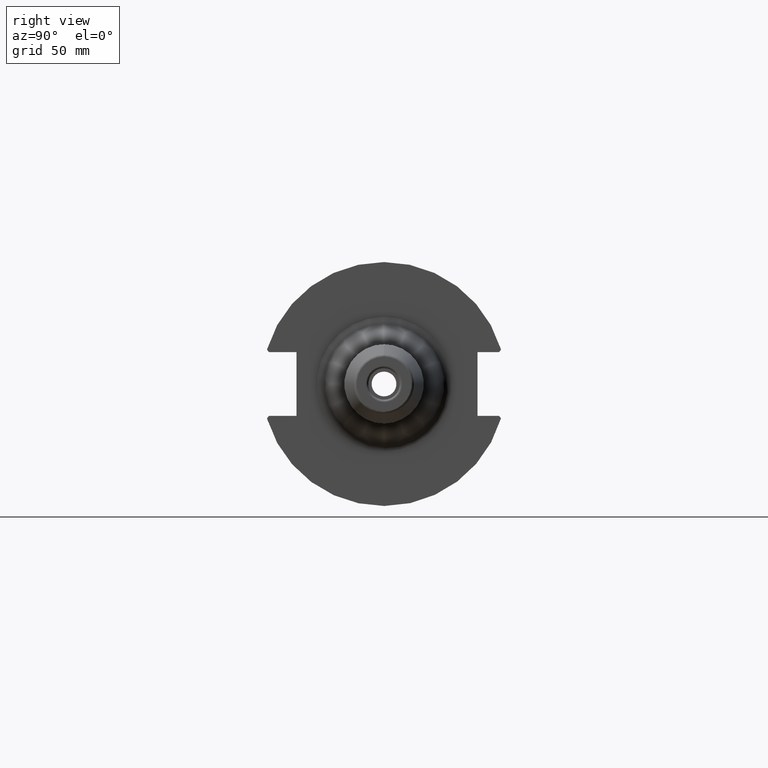
[diagram: clean part render]
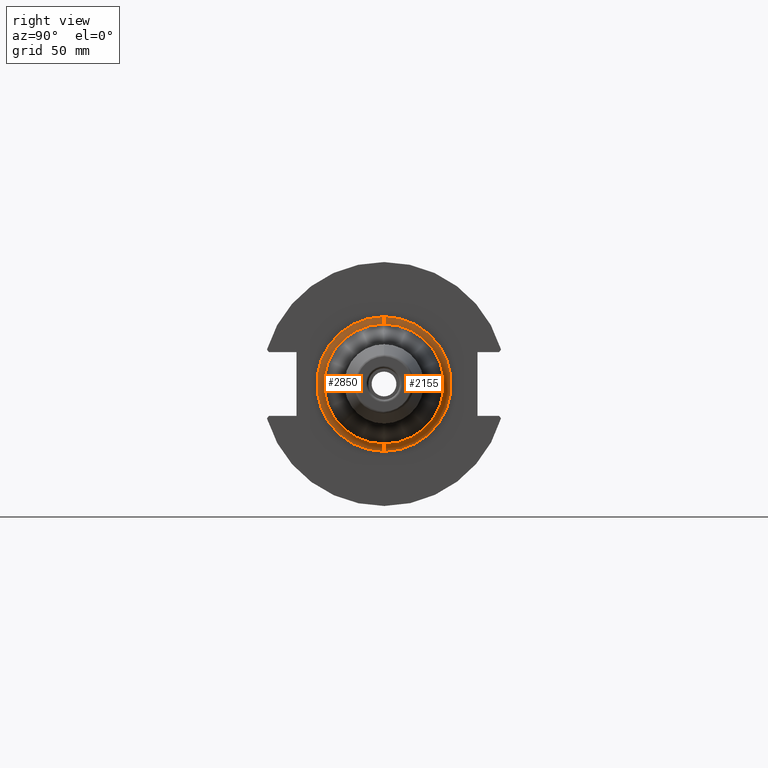
[diagram: same view with one multi-face feature highlighted, each face labeled with its STEP entity id]
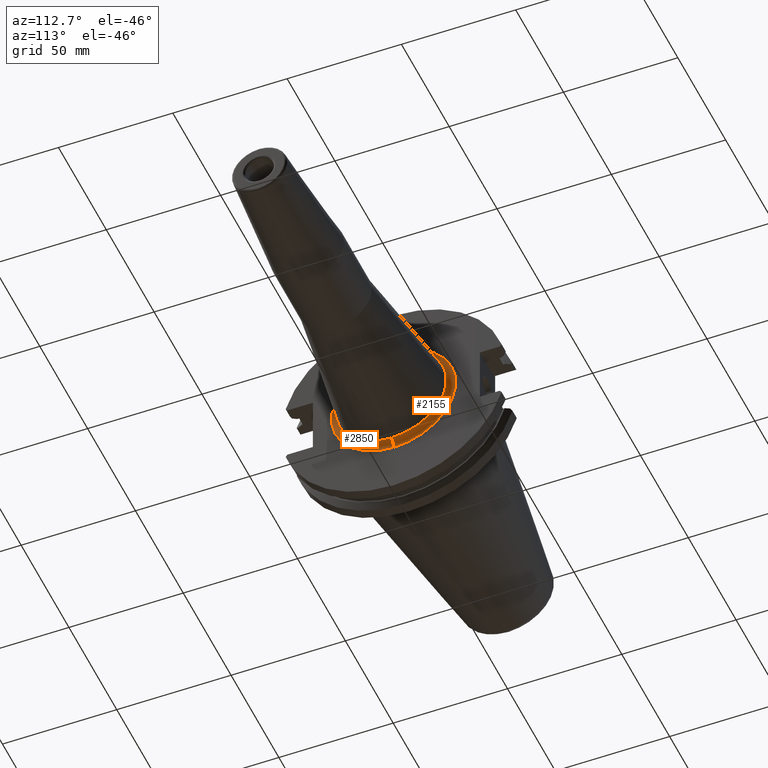
[diagram: same view with one multi-face feature highlighted, each face labeled with its STEP entity id]
A machine part, right view. The highlighted faces form ONE feature: a constant-radius fillet chain: 2 tangent blend faces with common blend radius 3 mm. The faces share edges in the B-rep.
A second angle (auxiliary view) of the same feature is appended — it is thin or edge-on in the first view.
Their STEP definitions:
[1] entity #2850 (Torus):
#562=CARTESIAN_POINT('',(1.905E1,0.E0,0.E0));
#563=DIRECTION('',(1.E0,0.E0,0.E0));
#564=DIRECTION('',(0.E0,0.E0,1.E0));
#565=AXIS2_PLACEMENT_3D('',#562,#563,#564);
#1046=CARTESIAN_POINT('',(2.205E1,0.E0,2.717382408856E1));
#1047=DIRECTION('',(0.E0,1.E0,0.E0));
#1048=DIRECTION('',(-1.391731009601E-1,0.E0,-9.902680687416E-1));
#1049=AXIS2_PLACEMENT_3D('',#1046,#1047,#1048);
#1051=CARTESIAN_POINT('',(2.163248069712E1,0.E0,0.E0));
#1052=DIRECTION('',(-1.E0,0.E0,0.E0));
#1053=DIRECTION('',(0.E0,0.E0,-1.E0));
#1054=AXIS2_PLACEMENT_3D('',#1051,#1052,#1053);
#1056=CARTESIAN_POINT('',(2.205E1,0.E0,-2.717382408856E1));
#1057=DIRECTION('',(0.E0,-1.E0,0.E0));
#1058=DIRECTION('',(-1.391731009601E-1,0.E0,9.902680687416E-1));
#1059=AXIS2_PLACEMENT_3D('',#1056,#1057,#1058);
#1321=CARTESIAN_POINT('',(2.163248069712E1,0.E0,-2.420301988233E1));
#1322=VERTEX_POINT('',#1321);
#1351=CARTESIAN_POINT('',(2.163248069712E1,0.E0,2.420301988233E1));
#1352=VERTEX_POINT('',#1351);
#1357=CARTESIAN_POINT('',(1.905E1,0.E0,-2.717382408856E1));
#1358=CARTESIAN_POINT('',(1.905E1,0.E0,2.717382408856E1));
#1359=VERTEX_POINT('',#1357);
#1360=VERTEX_POINT('',#1358);
#2839=CARTESIAN_POINT('',(2.205E1,0.E0,0.E0));
#2840=DIRECTION('',(1.E0,0.E0,0.E0));
#2841=DIRECTION('',(0.E0,0.E0,1.E0));
#2842=AXIS2_PLACEMENT_3D('',#2839,#2840,#2841);
#2843=TOROIDAL_SURFACE('',#2842,2.717382408856E1,3.E0);
#2844=ORIENTED_EDGE('',*,*,#2188,.F.);
#2845=ORIENTED_EDGE('',*,*,#2151,.F.);
#2846=ORIENTED_EDGE('',*,*,#2120,.F.);
#2847=ORIENTED_EDGE('',*,*,#2148,.T.);
#2848=EDGE_LOOP('',(#2844,#2845,#2846,#2847));
#2849=FACE_OUTER_BOUND('',#2848,.F.);
#2850=ADVANCED_FACE('',(#2849),#2843,.F.);
#566=CIRCLE('',#565,2.717382408856E1);
#1050=CIRCLE('',#1049,3.E0);
#1055=CIRCLE('',#1054,2.420301988233E1);
#1060=CIRCLE('',#1059,3.E0);
#2120=EDGE_CURVE('',#1322,#1352,#1055,.T.);
#2148=EDGE_CURVE('',#1322,#1359,#1060,.T.);
#2151=EDGE_CURVE('',#1352,#1360,#1050,.T.);
#2188=EDGE_CURVE('',#1360,#1359,#566,.T.);
[2] entity #2155 (Torus):
#512=CARTESIAN_POINT('',(2.163248069712E1,0.E0,0.E0));
#513=DIRECTION('',(1.E0,0.E0,0.E0));
#514=DIRECTION('',(0.E0,0.E0,-1.E0));
#515=AXIS2_PLACEMENT_3D('',#512,#513,#514);
#557=CARTESIAN_POINT('',(1.905E1,0.E0,0.E0));
#558=DIRECTION('',(1.E0,0.E0,0.E0));
#559=DIRECTION('',(0.E0,0.E0,-1.E0));
#560=AXIS2_PLACEMENT_3D('',#557,#558,#559);
#1046=CARTESIAN_POINT('',(2.205E1,0.E0,2.717382408856E1));
#1047=DIRECTION('',(0.E0,1.E0,0.E0));
#1048=DIRECTION('',(-1.391731009601E-1,0.E0,-9.902680687416E-1));
#1049=AXIS2_PLACEMENT_3D('',#1046,#1047,#1048);
#1056=CARTESIAN_POINT('',(2.205E1,0.E0,-2.717382408856E1));
#1057=DIRECTION('',(0.E0,-1.E0,0.E0));
#1058=DIRECTION('',(-1.391731009601E-1,0.E0,9.902680687416E-1));
#1059=AXIS2_PLACEMENT_3D('',#1056,#1057,#1058);
#1321=CARTESIAN_POINT('',(2.163248069712E1,0.E0,-2.420301988233E1));
#1322=VERTEX_POINT('',#1321);
#1351=CARTESIAN_POINT('',(2.163248069712E1,0.E0,2.420301988233E1));
#1352=VERTEX_POINT('',#1351);
#1357=CARTESIAN_POINT('',(1.905E1,0.E0,-2.717382408856E1));
#1358=CARTESIAN_POINT('',(1.905E1,0.E0,2.717382408856E1));
#1359=VERTEX_POINT('',#1357);
#1360=VERTEX_POINT('',#1358);
#2141=CARTESIAN_POINT('',(2.205E1,0.E0,0.E0));
#2142=DIRECTION('',(1.E0,0.E0,0.E0));
#2143=DIRECTION('',(0.E0,0.E0,1.E0));
#2144=AXIS2_PLACEMENT_3D('',#2141,#2142,#2143);
#2145=TOROIDAL_SURFACE('',#2144,2.717382408856E1,3.E0);
#2147=ORIENTED_EDGE('',*,*,#2146,.F.);
#2149=ORIENTED_EDGE('',*,*,#2148,.F.);
#2150=ORIENTED_EDGE('',*,*,#2136,.T.);
#2152=ORIENTED_EDGE('',*,*,#2151,.T.);
#2153=EDGE_LOOP('',(#2147,#2149,#2150,#2152));
#2154=FACE_OUTER_BOUND('',#2153,.F.);
#2155=ADVANCED_FACE('',(#2154),#2145,.F.);
#516=CIRCLE('',#515,2.420301988233E1);
#561=CIRCLE('',#560,2.717382408856E1);
#1050=CIRCLE('',#1049,3.E0);
#1060=CIRCLE('',#1059,3.E0);
#2136=EDGE_CURVE('',#1322,#1352,#516,.T.);
#2146=EDGE_CURVE('',#1359,#1360,#561,.T.);
#2148=EDGE_CURVE('',#1322,#1359,#1060,.T.);
#2151=EDGE_CURVE('',#1352,#1360,#1050,.T.);